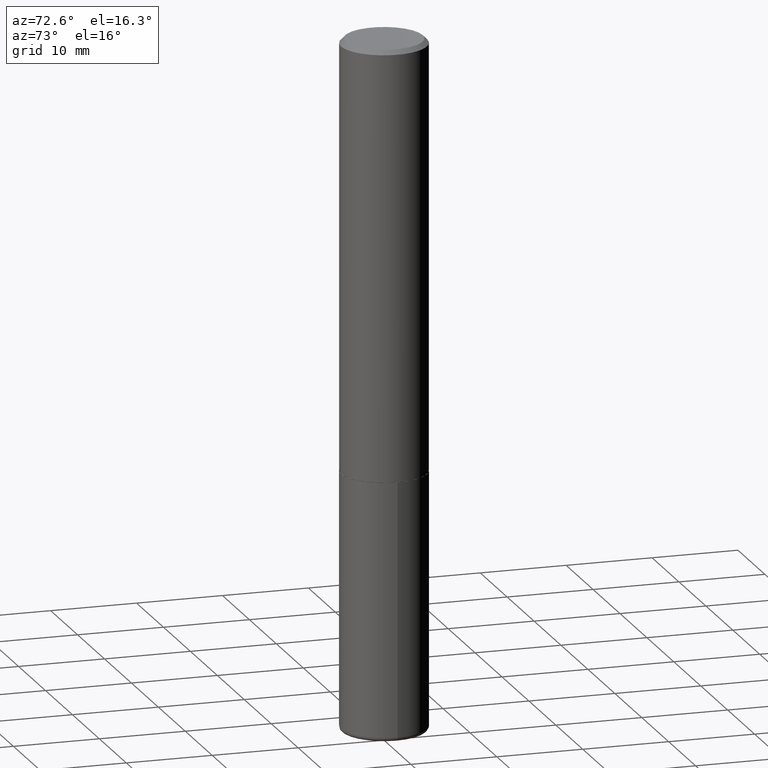
[diagram: clean part render]
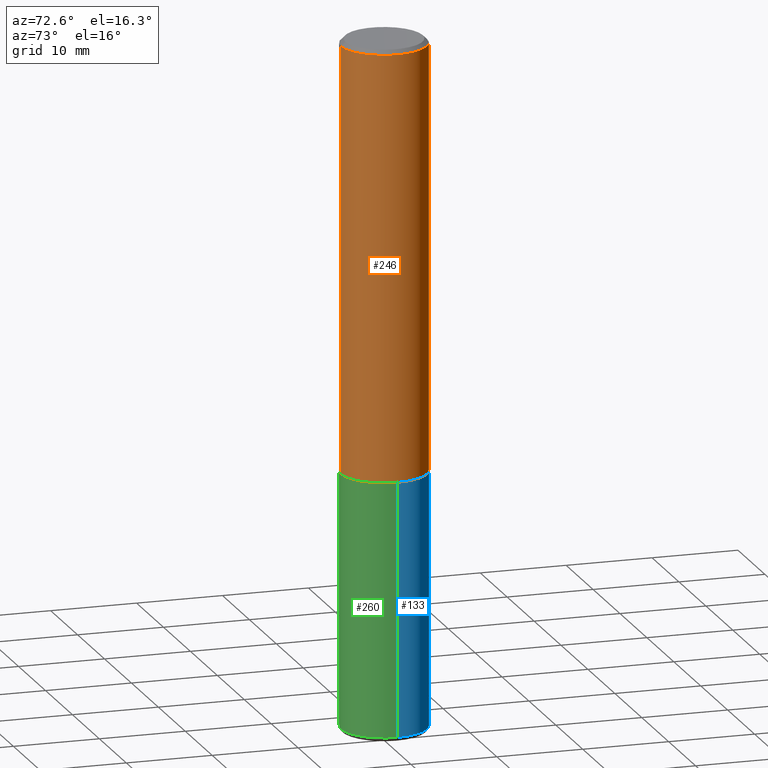
[diagram: same view with three faces highlighted in distinct colors, each labeled with its STEP entity id]
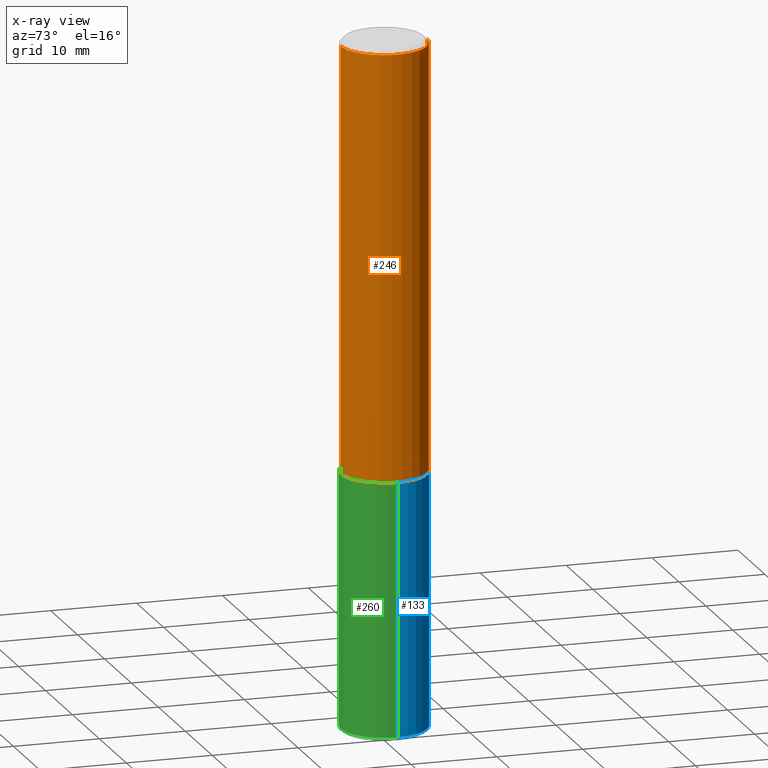
[diagram: x-ray of the same camera — body ghosted, the three highlighted faces saturated]
A machine part, auxiliary view with three faces highlighted in distinct colors.
The next image is the same camera in x-ray (body ghosted, the three faces saturated) — at least one of them is partly hidden behind the body in this view.
Their STEP definitions:

[orange] entity #246 — the highlighted cylindrical surface (partial cylindrical patch) has radius 5 mm, axis along (-0, 0, 1).
#1 = EDGE_CURVE ( 'NONE', #213, #373, #341, .T. ) ;
#9 = DIRECTION ( 'NONE',  ( -2.445268841296851437E-29, 3.491767699944464545E-15, 1.000000000000000000 ) ) ;
#46 = DIRECTION ( 'NONE',  ( -2.445268841296851437E-29, 3.491767699944464545E-15, 1.000000000000000000 ) ) ;
#56 = CARTESIAN_POINT ( 'NONE',  ( 4.890537682593712927E-31, -6.983535399888942699E-17, -0.02000000000000004205 ) ) ;
#68 = LINE ( 'NONE', #264, #87 ) ;
#85 = CARTESIAN_POINT ( 'NONE',  ( -1.374596203102542397E-15, -0.1968500000000001360, 6.873544717340683232E-16 ) ) ;
#87 = VECTOR ( 'NONE', #230, 39.37007874015748143 ) ;
#93 = EDGE_LOOP ( 'NONE', ( #303, #370, #409, #271 ) ) ;
#95 = VERTEX_POINT ( 'NONE', #411 ) ;
#99 = CIRCLE ( 'NONE', #149, 0.1968500000000000527 ) ;
#122 = AXIS2_PLACEMENT_3D ( 'NONE', #291, #46, #173 ) ;
#129 = CARTESIAN_POINT ( 'NONE',  ( 1.374596203102542200E-15, 0.1968499999999999694, -0.02000000000000072900 ) ) ;
#139 = EDGE_CURVE ( 'NONE', #213, #95, #164, .T. ) ;
#149 = AXIS2_PLACEMENT_3D ( 'NONE', #56, #178, #376 ) ;
#164 = CIRCLE ( 'NONE', #398, 0.1968500000000002470 ) ;
#173 = DIRECTION ( 'NONE',  ( -6.982962677686265922E-15, -1.000000000000000000, 3.491767699944464545E-15 ) ) ;
#178 = DIRECTION ( 'NONE',  ( -2.445268841296851437E-29, 3.491767699944464545E-15, 1.000000000000000000 ) ) ;
#196 = CARTESIAN_POINT ( 'NONE',  ( -1.374596203102495065E-15, -0.1968500000000071026, -1.967499999999998916 ) ) ;
#197 = EDGE_CURVE ( 'NONE', #95, #207, #68, .T. ) ;
#204 = VECTOR ( 'NONE', #218, 39.37007874015748143 ) ;
#207 = VERTEX_POINT ( 'NONE', #129 ) ;
#213 = VERTEX_POINT ( 'NONE', #196 ) ;
#218 = DIRECTION ( 'NONE',  ( -2.445268841296851437E-29, 3.491767699944464940E-15, 1.000000000000000000 ) ) ;
#230 = DIRECTION ( 'NONE',  ( -2.445268841296851437E-29, 3.491767699944464940E-15, 1.000000000000000000 ) ) ;
#237 = FACE_OUTER_BOUND ( 'NONE', #93, .T. ) ;
#246 = ADVANCED_FACE ( 'NONE', ( #237 ), #331, .T. ) ;
#264 = CARTESIAN_POINT ( 'NONE',  ( 1.398703375343757985E-15, 0.1968500000000001360, -6.873544717340683232E-16 ) ) ;
#271 = ORIENTED_EDGE ( 'NONE', *, *, #1, .F. ) ;
#291 = CARTESIAN_POINT ( 'NONE',  ( 0.000000000000000000, 0.000000000000000000, 0.000000000000000000 ) ) ;
#296 = DIRECTION ( 'NONE',  ( -6.982962677686265922E-15, -1.000000000000000000, 4.163344669033670112E-15 ) ) ;
#303 = ORIENTED_EDGE ( 'NONE', *, *, #139, .T. ) ;
#329 = EDGE_CURVE ( 'NONE', #373, #207, #99, .T. ) ;
#331 = CYLINDRICAL_SURFACE ( 'NONE', #122, 0.1968500000000001360 ) ;
#341 = LINE ( 'NONE', #85, #204 ) ;
#345 = CARTESIAN_POINT ( 'NONE',  ( -1.350489030861325626E-15, -0.1968500000000001082, -0.01999999999999935510 ) ) ;
#357 = CARTESIAN_POINT ( 'NONE',  ( 4.811066445251554069E-29, -6.870052949640732965E-15, -1.967499999999999805 ) ) ;
#370 = ORIENTED_EDGE ( 'NONE', *, *, #197, .T. ) ;
#373 = VERTEX_POINT ( 'NONE', #345 ) ;
#376 = DIRECTION ( 'NONE',  ( -6.982962677686265133E-15, -1.000000000000000000, 3.491137977679279029E-15 ) ) ;
#398 = AXIS2_PLACEMENT_3D ( 'NONE', #357, #9, #296 ) ;
#409 = ORIENTED_EDGE ( 'NONE', *, *, #329, .F. ) ;
#411 = CARTESIAN_POINT ( 'NONE',  ( 1.398703375343782440E-15, 0.1968499999999933914, -1.967500000000000471 ) ) ;

[blue] entity #133 — the highlighted cylindrical surface (partial cylindrical patch) has radius 5 mm, axis along (-0, 0, 1).
#12 = CARTESIAN_POINT ( 'NONE',  ( -0.1968500000000000250, -7.501780853635190206E-15, -1.968499999999999694 ) ) ;
#28 = VERTEX_POINT ( 'NONE', #60 ) ;
#29 = EDGE_CURVE ( 'NONE', #28, #176, #80, .T. ) ;
#43 = CYLINDRICAL_SURFACE ( 'NONE', #98, 0.1968499999999999694 ) ;
#44 = CIRCLE ( 'NONE', #277, 0.1968499999999999694 ) ;
#59 = LINE ( 'NONE', #155, #131 ) ;
#60 = CARTESIAN_POINT ( 'NONE',  ( 0.1968500000000000250, -8.247577218615273316E-15, -1.968499999999999694 ) ) ;
#72 = LINE ( 'NONE', #203, #342 ) ;
#78 = ORIENTED_EDGE ( 'NONE', *, *, #125, .F. ) ;
#79 = VERTEX_POINT ( 'NONE', #154 ) ;
#80 = CIRCLE ( 'NONE', #248, 0.1968500000000000250 ) ;
#92 = DIRECTION ( 'NONE',  ( -2.445468806185136877E-29, 3.491481338843145188E-15, 1.000000000000000000 ) ) ;
#98 = AXIS2_PLACEMENT_3D ( 'NONE', #327, #263, #170 ) ;
#108 = FACE_OUTER_BOUND ( 'NONE', #334, .T. ) ;
#125 = EDGE_CURVE ( 'NONE', #299, #28, #72, .T. ) ;
#131 = VECTOR ( 'NONE', #92, 39.37007874015748143 ) ;
#133 = ADVANCED_FACE ( 'NONE', ( #108 ), #43, .T. ) ;
#154 = CARTESIAN_POINT ( 'NONE',  ( -0.1968499999999999417, -9.529284067101404126E-15, -3.129900000000000571 ) ) ;
#155 = CARTESIAN_POINT ( 'NONE',  ( -0.1968499999999999694, 1.398703375343756999E-15, -9.682923725166782276E-30 ) ) ;
#158 = DIRECTION ( 'NONE',  ( -2.445468806185136597E-29, 3.491481338843145583E-15, 1.000000000000000000 ) ) ;
#170 = DIRECTION ( 'NONE',  ( 1.000000000000000000, -6.982962677686266711E-15, 4.876176775795935793E-29 ) ) ;
#176 = VERTEX_POINT ( 'NONE', #12 ) ;
#182 = EDGE_CURVE ( 'NONE', #299, #79, #44, .T. ) ;
#186 = DIRECTION ( 'NONE',  ( 1.000000000000000000, -6.982962677686267499E-15, 0.000000000000000000 ) ) ;
#202 = DIRECTION ( 'NONE',  ( -2.445468806185136877E-29, 3.491481338843145188E-15, 1.000000000000000000 ) ) ;
#203 = CARTESIAN_POINT ( 'NONE',  ( 0.1968499999999999694, -1.374596203102541411E-15, 9.598753983154298056E-30 ) ) ;
#208 = ORIENTED_EDGE ( 'NONE', *, *, #182, .T. ) ;
#248 = AXIS2_PLACEMENT_3D ( 'NONE', #281, #158, #186 ) ;
#259 = ORIENTED_EDGE ( 'NONE', *, *, #29, .F. ) ;
#263 = DIRECTION ( 'NONE',  ( -2.445468806185136597E-29, 3.491481338843145583E-15, 1.000000000000000000 ) ) ;
#269 = DIRECTION ( 'NONE',  ( 1.000000000000000000, -6.982962677686269866E-15, 0.000000000000000000 ) ) ;
#277 = AXIS2_PLACEMENT_3D ( 'NONE', #298, #397, #269 ) ;
#281 = CARTESIAN_POINT ( 'NONE',  ( 4.813905344975440714E-29, -6.872981015512730918E-15, -1.968499999999999694 ) ) ;
#298 = CARTESIAN_POINT ( 'NONE',  ( 7.654072816478859974E-29, -1.092798744244516270E-14, -3.129900000000000571 ) ) ;
#299 = VERTEX_POINT ( 'NONE', #356 ) ;
#308 = EDGE_CURVE ( 'NONE', #79, #176, #59, .T. ) ;
#327 = CARTESIAN_POINT ( 'NONE',  ( 0.000000000000000000, 0.000000000000000000, 0.000000000000000000 ) ) ;
#334 = EDGE_LOOP ( 'NONE', ( #208, #337, #259, #78 ) ) ;
#337 = ORIENTED_EDGE ( 'NONE', *, *, #308, .T. ) ;
#342 = VECTOR ( 'NONE', #202, 39.37007874015748143 ) ;
#356 = CARTESIAN_POINT ( 'NONE',  ( 0.1968499999999999417, -1.230258364554770273E-14, -3.129900000000000571 ) ) ;
#397 = DIRECTION ( 'NONE',  ( -2.445468806185136597E-29, 3.491481338843145583E-15, 1.000000000000000000 ) ) ;

[green] entity #260 — the highlighted cylindrical surface (partial cylindrical patch) has radius 5 mm, axis along (-0, 0, 1).
#5 = DIRECTION ( 'NONE',  ( -2.445468806185136597E-29, 3.491481338843145583E-15, 1.000000000000000000 ) ) ;
#12 = CARTESIAN_POINT ( 'NONE',  ( -0.1968500000000000250, -7.501780853635190206E-15, -1.968499999999999694 ) ) ;
#13 = ORIENTED_EDGE ( 'NONE', *, *, #151, .T. ) ;
#19 = CARTESIAN_POINT ( 'NONE',  ( 4.813905344975440714E-29, -6.872981015512730918E-15, -1.968499999999999694 ) ) ;
#28 = VERTEX_POINT ( 'NONE', #60 ) ;
#39 = FACE_OUTER_BOUND ( 'NONE', #215, .T. ) ;
#45 = AXIS2_PLACEMENT_3D ( 'NONE', #235, #5, #132 ) ;
#59 = LINE ( 'NONE', #155, #131 ) ;
#60 = CARTESIAN_POINT ( 'NONE',  ( 0.1968500000000000250, -8.247577218615273316E-15, -1.968499999999999694 ) ) ;
#63 = CIRCLE ( 'NONE', #295, 0.1968499999999999694 ) ;
#66 = CARTESIAN_POINT ( 'NONE',  ( 7.654072816478859974E-29, -1.092798744244516270E-14, -3.129900000000000571 ) ) ;
#71 = DIRECTION ( 'NONE',  ( -2.445468806185136597E-29, 3.491481338843145583E-15, 1.000000000000000000 ) ) ;
#72 = LINE ( 'NONE', #203, #342 ) ;
#79 = VERTEX_POINT ( 'NONE', #154 ) ;
#92 = DIRECTION ( 'NONE',  ( -2.445468806185136877E-29, 3.491481338843145188E-15, 1.000000000000000000 ) ) ;
#125 = EDGE_CURVE ( 'NONE', #299, #28, #72, .T. ) ;
#131 = VECTOR ( 'NONE', #92, 39.37007874015748143 ) ;
#132 = DIRECTION ( 'NONE',  ( 1.000000000000000000, -6.982962677686266711E-15, 4.876176775795935793E-29 ) ) ;
#151 = EDGE_CURVE ( 'NONE', #79, #299, #63, .T. ) ;
#154 = CARTESIAN_POINT ( 'NONE',  ( -0.1968499999999999417, -9.529284067101404126E-15, -3.129900000000000571 ) ) ;
#155 = CARTESIAN_POINT ( 'NONE',  ( -0.1968499999999999694, 1.398703375343756999E-15, -9.682923725166782276E-30 ) ) ;
#176 = VERTEX_POINT ( 'NONE', #12 ) ;
#202 = DIRECTION ( 'NONE',  ( -2.445468806185136877E-29, 3.491481338843145188E-15, 1.000000000000000000 ) ) ;
#203 = CARTESIAN_POINT ( 'NONE',  ( 0.1968499999999999694, -1.374596203102541411E-15, 9.598753983154298056E-30 ) ) ;
#205 = AXIS2_PLACEMENT_3D ( 'NONE', #19, #305, #274 ) ;
#215 = EDGE_LOOP ( 'NONE', ( #276, #13, #242, #280 ) ) ;
#235 = CARTESIAN_POINT ( 'NONE',  ( 0.000000000000000000, 0.000000000000000000, 0.000000000000000000 ) ) ;
#242 = ORIENTED_EDGE ( 'NONE', *, *, #125, .T. ) ;
#260 = ADVANCED_FACE ( 'NONE', ( #39 ), #391, .T. ) ;
#274 = DIRECTION ( 'NONE',  ( 1.000000000000000000, -6.982962677686267499E-15, 0.000000000000000000 ) ) ;
#276 = ORIENTED_EDGE ( 'NONE', *, *, #308, .F. ) ;
#280 = ORIENTED_EDGE ( 'NONE', *, *, #400, .F. ) ;
#295 = AXIS2_PLACEMENT_3D ( 'NONE', #66, #71, #387 ) ;
#299 = VERTEX_POINT ( 'NONE', #356 ) ;
#305 = DIRECTION ( 'NONE',  ( -2.445468806185136597E-29, 3.491481338843145583E-15, 1.000000000000000000 ) ) ;
#308 = EDGE_CURVE ( 'NONE', #79, #176, #59, .T. ) ;
#342 = VECTOR ( 'NONE', #202, 39.37007874015748143 ) ;
#356 = CARTESIAN_POINT ( 'NONE',  ( 0.1968499999999999417, -1.230258364554770273E-14, -3.129900000000000571 ) ) ;
#386 = CIRCLE ( 'NONE', #205, 0.1968500000000000250 ) ;
#387 = DIRECTION ( 'NONE',  ( 1.000000000000000000, -6.982962677686269866E-15, 0.000000000000000000 ) ) ;
#391 = CYLINDRICAL_SURFACE ( 'NONE', #45, 0.1968499999999999694 ) ;
#400 = EDGE_CURVE ( 'NONE', #176, #28, #386, .T. ) ;